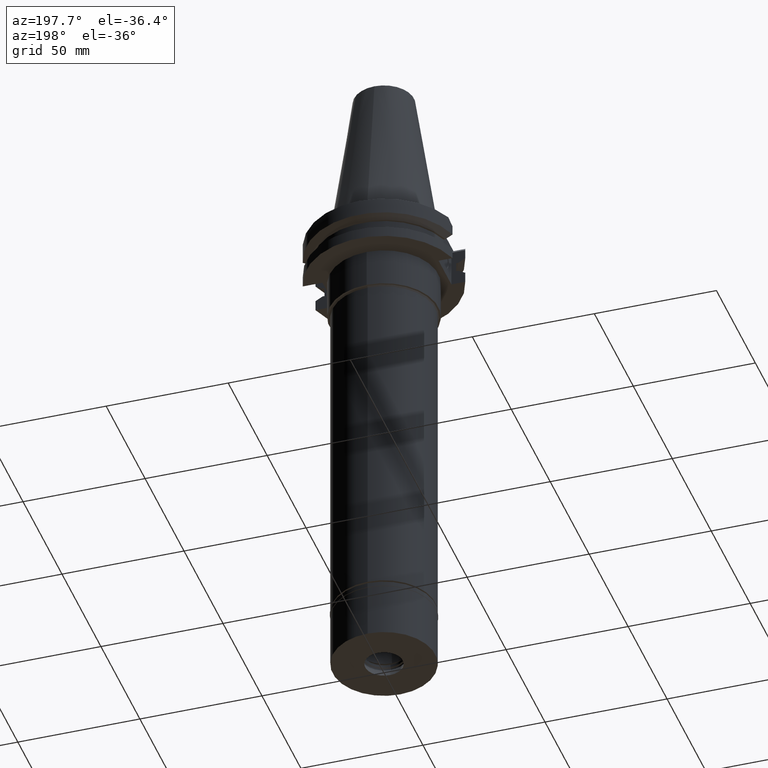
[diagram: clean part render]
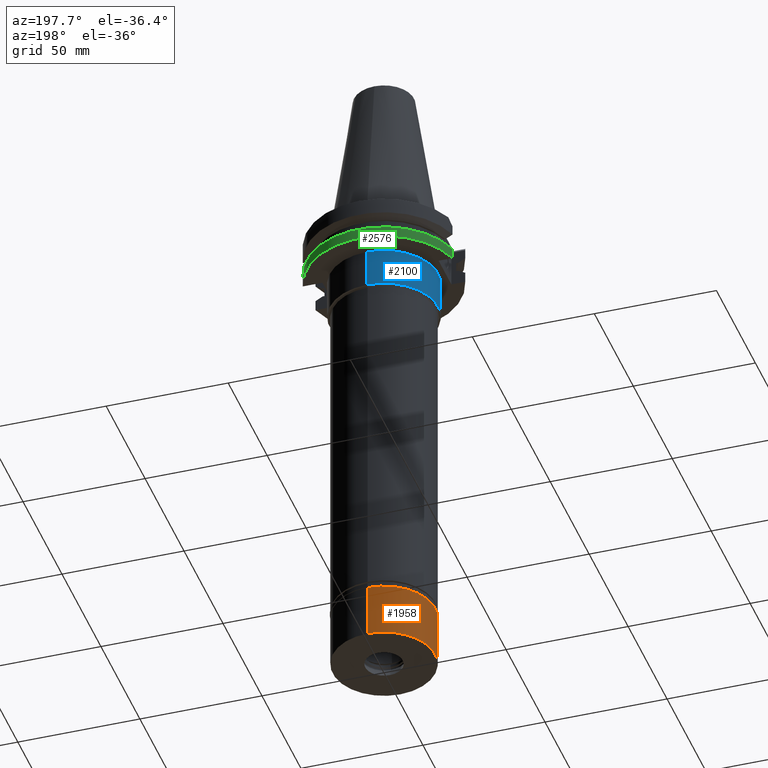
[diagram: same view with three faces highlighted in distinct colors, each labeled with its STEP entity id]
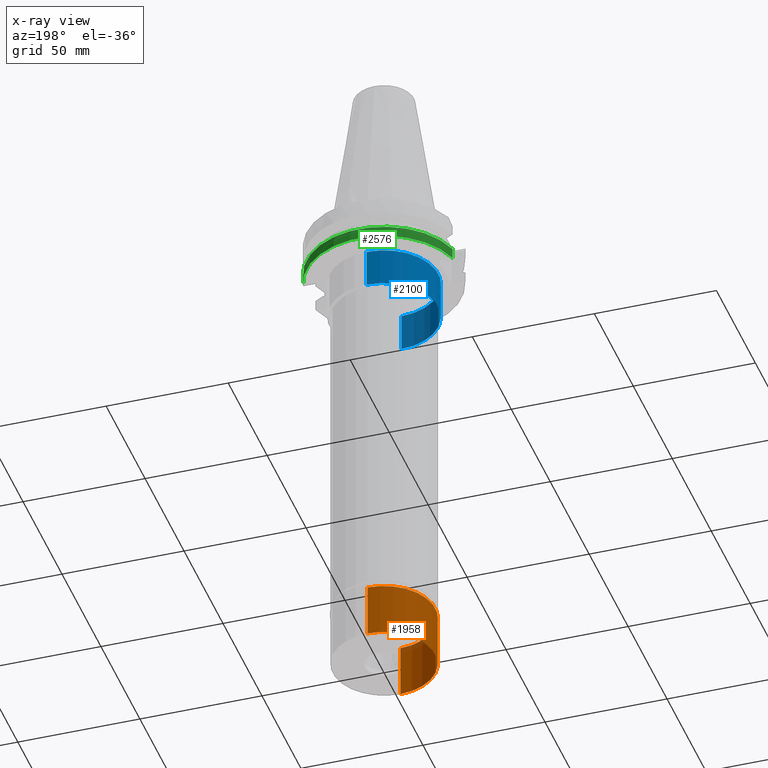
[diagram: x-ray of the same camera — body ghosted, the three highlighted faces saturated]
A machine part, auxiliary view with three faces highlighted in distinct colors.
The next image is the same camera in x-ray (body ghosted, the three faces saturated) — at least one of them is partly hidden behind the body in this view.
Their STEP definitions:

[orange] entity #1958 — the highlighted cylindrical surface (partial cylindrical patch) has radius 21 mm, axis along (0, 0, -1).
#76 = DIRECTION ( 'NONE',  ( 0.0000000000000000000, 0.0000000000000000000, -1.000000000000000000 ) ) ;
#166 = ORIENTED_EDGE ( 'NONE', *, *, #1762, .T. ) ;
#179 = ORIENTED_EDGE ( 'NONE', *, *, #1444, .T. ) ;
#188 = DIRECTION ( 'NONE',  ( 0.0000000000000000000, 0.0000000000000000000, 1.000000000000000000 ) ) ;
#411 = AXIS2_PLACEMENT_3D ( 'NONE', #1493, #188, #3259 ) ;
#420 = AXIS2_PLACEMENT_3D ( 'NONE', #1716, #717, #1731 ) ;
#717 = DIRECTION ( 'NONE',  ( 0.0000000000000000000, 0.0000000000000000000, -1.000000000000000000 ) ) ;
#786 = AXIS2_PLACEMENT_3D ( 'NONE', #2820, #76, #1088 ) ;
#957 = VERTEX_POINT ( 'NONE', #1876 ) ;
#1086 = CIRCLE ( 'NONE', #411, 21.00000000000000000 ) ;
#1088 = DIRECTION ( 'NONE',  ( 0.0000000000000000000, -1.000000000000000000, 0.0000000000000000000 ) ) ;
#1154 = CIRCLE ( 'NONE', #786, 21.00000000000000000 ) ;
#1196 = CARTESIAN_POINT ( 'NONE',  ( 0.0000000000000000000, -21.00000000000000000, -24.29999999999999716 ) ) ;
#1254 = ORIENTED_EDGE ( 'NONE', *, *, #1397, .F. ) ;
#1317 = VERTEX_POINT ( 'NONE', #2939 ) ;
#1397 = EDGE_CURVE ( 'NONE', #1317, #2731, #1688, .T. ) ;
#1441 = ORIENTED_EDGE ( 'NONE', *, *, #2671, .T. ) ;
#1444 = EDGE_CURVE ( 'NONE', #3165, #957, #2429, .T. ) ;
#1493 = CARTESIAN_POINT ( 'NONE',  ( 0.0000000000000000000, 0.0000000000000000000, -24.29999999999999716 ) ) ;
#1651 = CARTESIAN_POINT ( 'NONE',  ( 0.0000000000000000000, 21.00000000000000000, -2.000000000000000000 ) ) ;
#1688 = LINE ( 'NONE', #3178, #1943 ) ;
#1699 = CYLINDRICAL_SURFACE ( 'NONE', #420, 21.00000000000000000 ) ;
#1716 = CARTESIAN_POINT ( 'NONE',  ( 0.0000000000000000000, 0.0000000000000000000, 0.0000000000000000000 ) ) ;
#1731 = DIRECTION ( 'NONE',  ( 0.0000000000000000000, -1.000000000000000000, 0.0000000000000000000 ) ) ;
#1762 = EDGE_CURVE ( 'NONE', #1317, #3165, #1154, .T. ) ;
#1874 = DIRECTION ( 'NONE',  ( 0.0000000000000000000, 0.0000000000000000000, -1.000000000000000000 ) ) ;
#1876 = CARTESIAN_POINT ( 'NONE',  ( 0.0000000000000000000, 21.00000000000000000, -24.29999999999999716 ) ) ;
#1943 = VECTOR ( 'NONE', #1874, 1000.000000000000000 ) ;
#1958 = ADVANCED_FACE ( 'NONE', ( #2155 ), #1699, .T. ) ;
#2155 = FACE_OUTER_BOUND ( 'NONE', #2842, .T. ) ;
#2196 = DIRECTION ( 'NONE',  ( 0.0000000000000000000, 0.0000000000000000000, -1.000000000000000000 ) ) ;
#2429 = LINE ( 'NONE', #1651, #2962 ) ;
#2671 = EDGE_CURVE ( 'NONE', #957, #2731, #1086, .T. ) ;
#2731 = VERTEX_POINT ( 'NONE', #1196 ) ;
#2820 = CARTESIAN_POINT ( 'NONE',  ( 0.0000000000000000000, 0.0000000000000000000, -2.000000000000000000 ) ) ;
#2842 = EDGE_LOOP ( 'NONE', ( #1441, #1254, #166, #179 ) ) ;
#2939 = CARTESIAN_POINT ( 'NONE',  ( 0.0000000000000000000, -21.00000000000000000, -2.000000000000000000 ) ) ;
#2962 = VECTOR ( 'NONE', #2196, 1000.000000000000000 ) ;
#2964 = CARTESIAN_POINT ( 'NONE',  ( 0.0000000000000000000, 21.00000000000000000, -2.000000000000000000 ) ) ;
#3165 = VERTEX_POINT ( 'NONE', #2964 ) ;
#3178 = CARTESIAN_POINT ( 'NONE',  ( 0.0000000000000000000, -21.00000000000000000, -2.000000000000000000 ) ) ;
#3259 = DIRECTION ( 'NONE',  ( 0.0000000000000000000, 1.000000000000000000, 0.0000000000000000000 ) ) ;

[blue] entity #2100 — the highlighted cylindrical surface (partial cylindrical patch) has radius 22.225 mm, axis along (0, 0, -1).
#12 = CYLINDRICAL_SURFACE ( 'NONE', #1000, 22.22500000000000142 ) ;
#49 = ORIENTED_EDGE ( 'NONE', *, *, #999, .T. ) ;
#143 = VERTEX_POINT ( 'NONE', #699 ) ;
#163 = CARTESIAN_POINT ( 'NONE',  ( 0.0000000000000000000, 22.22500000000000142, -19.05000000000000071 ) ) ;
#180 = VECTOR ( 'NONE', #1842, 1000.000000000000000 ) ;
#287 = DIRECTION ( 'NONE',  ( 0.0000000000000000000, -1.000000000000000000, 0.0000000000000000000 ) ) ;
#401 = CARTESIAN_POINT ( 'NONE',  ( 0.0000000000000000000, -22.22500000000000142, -35.00000000000000000 ) ) ;
#508 = VECTOR ( 'NONE', #1564, 1000.000000000000000 ) ;
#575 = CARTESIAN_POINT ( 'NONE',  ( 0.0000000000000000000, 22.22500000000000142, -19.05000000000000071 ) ) ;
#641 = AXIS2_PLACEMENT_3D ( 'NONE', #2562, #3097, #2923 ) ;
#699 = CARTESIAN_POINT ( 'NONE',  ( 0.0000000000000000000, -22.22500000000000142, -19.05000000000000071 ) ) ;
#714 = DIRECTION ( 'NONE',  ( 0.0000000000000000000, 0.0000000000000000000, 1.000000000000000000 ) ) ;
#731 = DIRECTION ( 'NONE',  ( 0.0000000000000000000, 1.000000000000000000, 0.0000000000000000000 ) ) ;
#772 = EDGE_CURVE ( 'NONE', #143, #1828, #1051, .T. ) ;
#935 = EDGE_CURVE ( 'NONE', #143, #2213, #1490, .T. ) ;
#999 = EDGE_CURVE ( 'NONE', #2213, #1868, #2616, .T. ) ;
#1000 = AXIS2_PLACEMENT_3D ( 'NONE', #1012, #2281, #287 ) ;
#1012 = CARTESIAN_POINT ( 'NONE',  ( 0.0000000000000000000, 2.222091000882999701E-14, 81.44750000000000512 ) ) ;
#1051 = LINE ( 'NONE', #2276, #508 ) ;
#1206 = CIRCLE ( 'NONE', #3127, 22.22500000000000142 ) ;
#1213 = CARTESIAN_POINT ( 'NONE',  ( 0.0000000000000000000, 2.222091000882999701E-14, -35.00000000000000000 ) ) ;
#1257 = EDGE_LOOP ( 'NONE', ( #1643, #1673, #1971, #49 ) ) ;
#1391 = CARTESIAN_POINT ( 'NONE',  ( 0.0000000000000000000, 22.22500000000000142, -35.00000000000000000 ) ) ;
#1490 = CIRCLE ( 'NONE', #641, 22.22500000000000142 ) ;
#1526 = FACE_OUTER_BOUND ( 'NONE', #1257, .T. ) ;
#1564 = DIRECTION ( 'NONE',  ( 0.0000000000000000000, 0.0000000000000000000, -1.000000000000000000 ) ) ;
#1643 = ORIENTED_EDGE ( 'NONE', *, *, #2643, .T. ) ;
#1673 = ORIENTED_EDGE ( 'NONE', *, *, #772, .F. ) ;
#1828 = VERTEX_POINT ( 'NONE', #401 ) ;
#1842 = DIRECTION ( 'NONE',  ( 0.0000000000000000000, 0.0000000000000000000, -1.000000000000000000 ) ) ;
#1868 = VERTEX_POINT ( 'NONE', #1391 ) ;
#1971 = ORIENTED_EDGE ( 'NONE', *, *, #935, .T. ) ;
#2100 = ADVANCED_FACE ( 'NONE', ( #1526 ), #12, .T. ) ;
#2213 = VERTEX_POINT ( 'NONE', #575 ) ;
#2276 = CARTESIAN_POINT ( 'NONE',  ( 0.0000000000000000000, -22.22500000000000142, -19.05000000000000071 ) ) ;
#2281 = DIRECTION ( 'NONE',  ( 0.0000000000000000000, 0.0000000000000000000, -1.000000000000000000 ) ) ;
#2562 = CARTESIAN_POINT ( 'NONE',  ( 0.0000000000000000000, 2.222091000882999701E-14, -19.05000000000000071 ) ) ;
#2616 = LINE ( 'NONE', #163, #180 ) ;
#2643 = EDGE_CURVE ( 'NONE', #1868, #1828, #1206, .T. ) ;
#2923 = DIRECTION ( 'NONE',  ( 0.0000000000000000000, -1.000000000000000000, 0.0000000000000000000 ) ) ;
#3097 = DIRECTION ( 'NONE',  ( 0.0000000000000000000, 0.0000000000000000000, -1.000000000000000000 ) ) ;
#3127 = AXIS2_PLACEMENT_3D ( 'NONE', #1213, #714, #731 ) ;

[green] entity #2576 — the highlighted cylindrical surface (partial cylindrical patch) has radius 31.75 mm, axis along (0, 0, -1).
#46 = EDGE_CURVE ( 'NONE', #412, #2619, #1745, .T. ) ;
#98 = ORIENTED_EDGE ( 'NONE', *, *, #3054, .T. ) ;
#329 = CARTESIAN_POINT ( 'NONE',  ( -30.67550162588999640, 8.189999999999999503, -19.05000000000000071 ) ) ;
#412 = VERTEX_POINT ( 'NONE', #1385 ) ;
#761 = CIRCLE ( 'NONE', #2618, 31.74999999999998579 ) ;
#838 = AXIS2_PLACEMENT_3D ( 'NONE', #1661, #853, #2133 ) ;
#853 = DIRECTION ( 'NONE',  ( 0.0000000000000000000, 0.0000000000000000000, -1.000000000000000000 ) ) ;
#859 = LINE ( 'NONE', #1125, #2692 ) ;
#881 = CARTESIAN_POINT ( 'NONE',  ( 0.0000000000000000000, 2.222091000882999701E-14, -19.05000000000000071 ) ) ;
#1034 = AXIS2_PLACEMENT_3D ( 'NONE', #881, #2094, #2184 ) ;
#1095 = VERTEX_POINT ( 'NONE', #2356 ) ;
#1116 = CARTESIAN_POINT ( 'NONE',  ( 0.0000000000000000000, 1.055026073064999954E-14, -14.65366676908000088 ) ) ;
#1125 = CARTESIAN_POINT ( 'NONE',  ( 30.67550162588999640, 8.189999999999999503, -19.05000000000000071 ) ) ;
#1126 = ORIENTED_EDGE ( 'NONE', *, *, #1335, .F. ) ;
#1180 = EDGE_CURVE ( 'NONE', #412, #1095, #761, .T. ) ;
#1211 = VECTOR ( 'NONE', #3052, 999.9999999999998863 ) ;
#1219 = ORIENTED_EDGE ( 'NONE', *, *, #1180, .T. ) ;
#1335 = EDGE_CURVE ( 'NONE', #2654, #1095, #859, .T. ) ;
#1385 = CARTESIAN_POINT ( 'NONE',  ( -30.67550162588999640, 8.190000000000997815, -14.65366676908000088 ) ) ;
#1390 = FACE_OUTER_BOUND ( 'NONE', #2502, .T. ) ;
#1442 = DIRECTION ( 'NONE',  ( 0.0000000000000000000, 0.0000000000000000000, -1.000000000000000000 ) ) ;
#1661 = CARTESIAN_POINT ( 'NONE',  ( 0.0000000000000000000, 2.222091000882999701E-14, 81.44750000000000512 ) ) ;
#1745 = LINE ( 'NONE', #1978, #1211 ) ;
#1978 = CARTESIAN_POINT ( 'NONE',  ( -30.67550146397999811, 8.190000606419001628, -14.65367218817000072 ) ) ;
#2007 = CARTESIAN_POINT ( 'NONE',  ( 30.67550162588999640, 8.189999999999999503, -19.05000000000000071 ) ) ;
#2094 = DIRECTION ( 'NONE',  ( 0.0000000000000000000, 0.0000000000000000000, 1.000000000000000000 ) ) ;
#2133 = DIRECTION ( 'NONE',  ( 0.0000000000000000000, -1.000000000000000000, 0.0000000000000000000 ) ) ;
#2184 = DIRECTION ( 'NONE',  ( 0.0000000000000000000, 1.000000000000000000, 0.0000000000000000000 ) ) ;
#2356 = CARTESIAN_POINT ( 'NONE',  ( 30.67550165945999652, 8.189999874275001090, -14.65366564558000029 ) ) ;
#2369 = CYLINDRICAL_SURFACE ( 'NONE', #838, 31.75000000000000000 ) ;
#2423 = CIRCLE ( 'NONE', #1034, 31.75000000000000000 ) ;
#2442 = DIRECTION ( 'NONE',  ( -0.9661575315241073270, 0.2579527559055020958, 0.0000000000000000000 ) ) ;
#2502 = EDGE_LOOP ( 'NONE', ( #1126, #98, #2870, #1219 ) ) ;
#2576 = ADVANCED_FACE ( 'NONE', ( #1390 ), #2369, .T. ) ;
#2618 = AXIS2_PLACEMENT_3D ( 'NONE', #1116, #1442, #2442 ) ;
#2619 = VERTEX_POINT ( 'NONE', #329 ) ;
#2654 = VERTEX_POINT ( 'NONE', #2007 ) ;
#2692 = VECTOR ( 'NONE', #2921, 1000.000000000000000 ) ;
#2870 = ORIENTED_EDGE ( 'NONE', *, *, #46, .F. ) ;
#2921 = DIRECTION ( 'NONE',  ( 7.635403512638996951E-09, -2.859770824839998407E-08, 0.9999999999999995559 ) ) ;
#3052 = DIRECTION ( 'NONE',  ( -3.682758103212926935E-08, -1.379376211928972242E-07, -0.9999999999999898970 ) ) ;
#3054 = EDGE_CURVE ( 'NONE', #2654, #2619, #2423, .T. ) ;